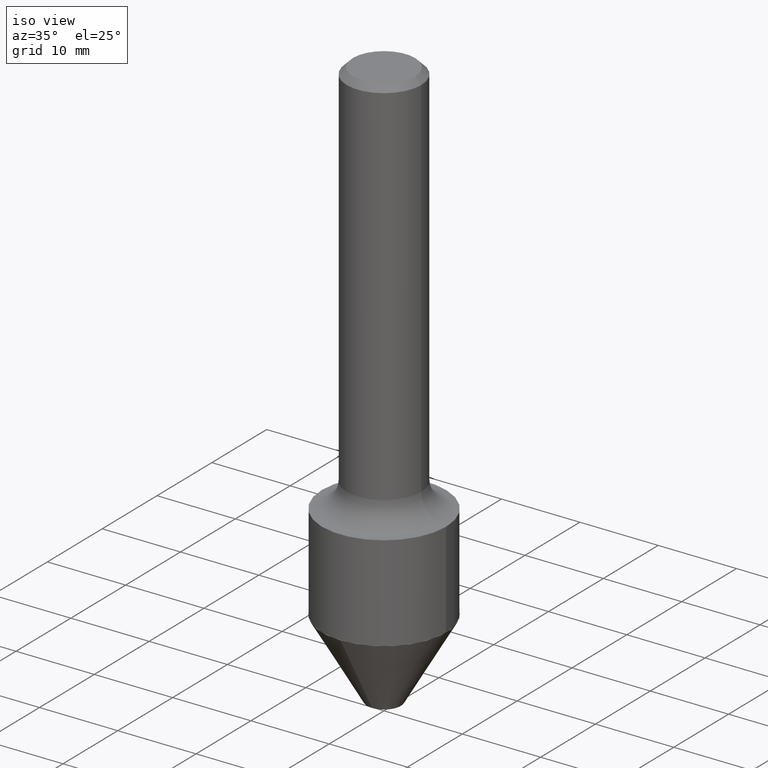
[diagram: clean part render]
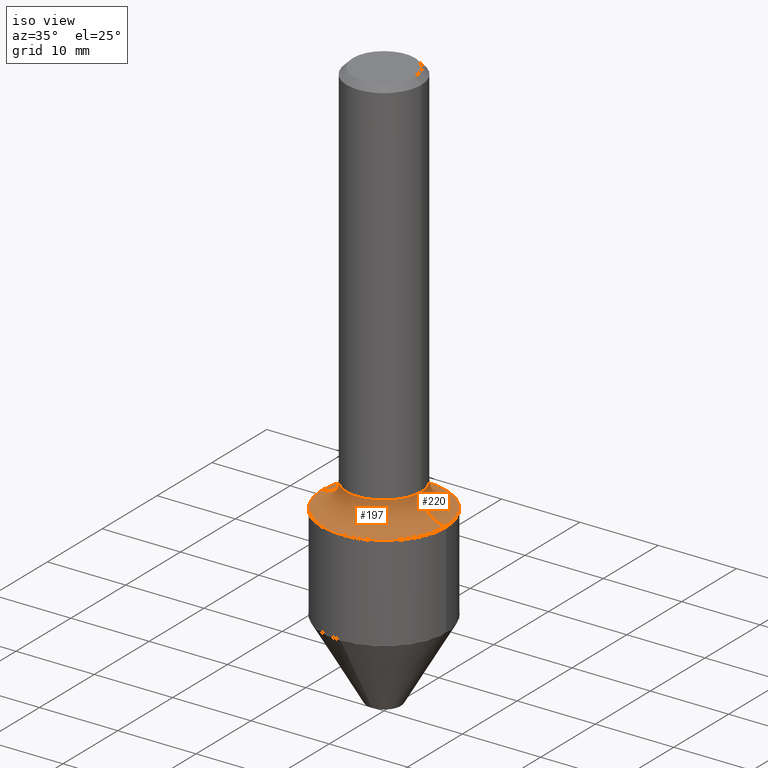
[diagram: same view with one multi-face feature highlighted, each face labeled with its STEP entity id]
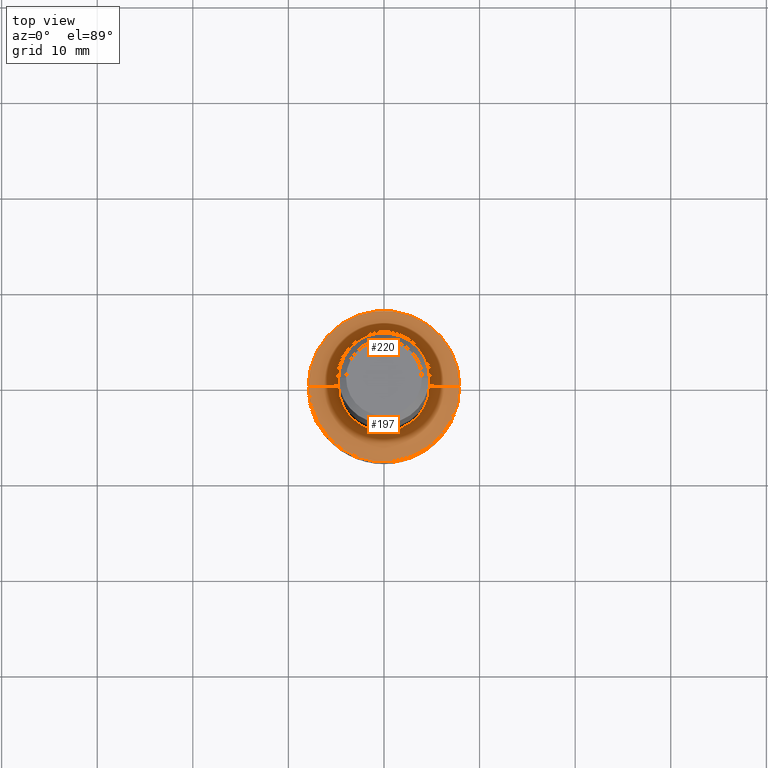
[diagram: same view with one multi-face feature highlighted, each face labeled with its STEP entity id]
A machine part, iso view. The highlighted faces form ONE feature: a constant-radius fillet chain: 2 tangent blend faces with common blend radius 3.175 mm. The faces share edges in the B-rep.
A second angle (top view) of the same feature is appended — it is thin or edge-on in the first view.
Their STEP definitions:
[1] entity #220 (Torus):
#22 = CIRCLE ( 'NONE', #275, 0.1249999999999996947 ) ;
#55 = EDGE_CURVE ( 'NONE', #303, #427, #282, .T. ) ;
#66 = VERTEX_POINT ( 'NONE', #76 ) ;
#76 = CARTESIAN_POINT ( 'NONE',  ( -0.3125000000000000000, -4.779974035130193909E-15, -2.004999999999999893 ) ) ;
#88 = CARTESIAN_POINT ( 'NONE',  ( 4.903164956401198966E-29, -7.000420084380507779E-15, -2.004999999999999893 ) ) ;
#102 = EDGE_CURVE ( 'NONE', #427, #66, #242, .T. ) ;
#115 = CIRCLE ( 'NONE', #130, 0.1875000000000002498 ) ;
#120 = AXIS2_PLACEMENT_3D ( 'NONE', #88, #256, #210 ) ;
#130 = AXIS2_PLACEMENT_3D ( 'NONE', #168, #508, #173 ) ;
#140 = CARTESIAN_POINT ( 'NONE',  ( -0.1875000000000002498, -5.005845661302559902E-15, -1.880000000000000338 ) ) ;
#168 = CARTESIAN_POINT ( 'NONE',  ( 4.597481355628058013E-29, -6.563984917025115320E-15, -1.880000000000000338 ) ) ;
#169 = EDGE_CURVE ( 'NONE', #303, #424, #115, .T. ) ;
#173 = DIRECTION ( 'NONE',  ( 1.000000000000000000, -6.982962677686269077E-15, 0.000000000000000000 ) ) ;
#210 = DIRECTION ( 'NONE',  ( 1.000000000000000000, -6.982962677686269077E-15, 0.000000000000000000 ) ) ;
#220 = ADVANCED_FACE ( 'NONE', ( #471 ), #279, .F. ) ;
#226 = CARTESIAN_POINT ( 'NONE',  ( 4.597481355628058013E-29, -6.563984917025115320E-15, -1.880000000000000338 ) ) ;
#234 = ORIENTED_EDGE ( 'NONE', *, *, #169, .F. ) ;
#242 = CIRCLE ( 'NONE', #120, 0.3125000000000000000 ) ;
#255 = ORIENTED_EDGE ( 'NONE', *, *, #386, .F. ) ;
#256 = DIRECTION ( 'NONE',  ( -2.445468806185136597E-29, 3.491481338843145583E-15, 1.000000000000000000 ) ) ;
#266 = DIRECTION ( 'NONE',  ( -2.445468806185136597E-29, 3.491481338843145583E-15, 1.000000000000000000 ) ) ;
#275 = AXIS2_PLACEMENT_3D ( 'NONE', #491, #464, #305 ) ;
#279 = TOROIDAL_SURFACE ( 'NONE', #504, 0.3125000000000000000, 0.1249999999999996947 ) ;
#282 = CIRCLE ( 'NONE', #484, 0.1249999999999996947 ) ;
#303 = VERTEX_POINT ( 'NONE', #416 ) ;
#305 = DIRECTION ( 'NONE',  ( -1.000000000000000000, 7.105427357601001859E-15, 0.000000000000000000 ) ) ;
#338 = ORIENTED_EDGE ( 'NONE', *, *, #55, .T. ) ;
#386 = EDGE_CURVE ( 'NONE', #424, #66, #22, .T. ) ;
#416 = CARTESIAN_POINT ( 'NONE',  ( 0.1875000000000002498, -7.873290419091291906E-15, -1.880000000000000338 ) ) ;
#421 = EDGE_LOOP ( 'NONE', ( #255, #234, #338, #442 ) ) ;
#424 = VERTEX_POINT ( 'NONE', #140 ) ;
#427 = VERTEX_POINT ( 'NONE', #439 ) ;
#439 = CARTESIAN_POINT ( 'NONE',  ( 0.3125000000000000000, -9.182595921157466915E-15, -2.004999999999999893 ) ) ;
#442 = ORIENTED_EDGE ( 'NONE', *, *, #102, .T. ) ;
#445 = DIRECTION ( 'NONE',  ( 1.000000000000000000, -6.982962677686265133E-15, 0.000000000000000000 ) ) ;
#449 = CARTESIAN_POINT ( 'NONE',  ( 0.3125000000000000000, -8.746160753802073667E-15, -1.880000000000000338 ) ) ;
#464 = DIRECTION ( 'NONE',  ( 7.105427357601001859E-15, 1.000000000000000000, -3.491481338843145583E-15 ) ) ;
#467 = DIRECTION ( 'NONE',  ( 1.000000000000000000, -6.982962677686265133E-15, 4.883557194083112340E-29 ) ) ;
#471 = FACE_OUTER_BOUND ( 'NONE', #421, .T. ) ;
#484 = AXIS2_PLACEMENT_3D ( 'NONE', #449, #488, #445 ) ;
#488 = DIRECTION ( 'NONE',  ( -6.982962677686266711E-15, -1.000000000000000000, 3.491481338843145583E-15 ) ) ;
#491 = CARTESIAN_POINT ( 'NONE',  ( -0.3125000000000000000, -4.343538867774801451E-15, -1.880000000000000338 ) ) ;
#504 = AXIS2_PLACEMENT_3D ( 'NONE', #226, #266, #467 ) ;
#508 = DIRECTION ( 'NONE',  ( -2.445468806185136597E-29, 3.491481338843145583E-15, 1.000000000000000000 ) ) ;
[2] entity #197 (Torus):
#14 = DIRECTION ( 'NONE',  ( 1.000000000000000000, -6.982962677686269077E-15, 0.000000000000000000 ) ) ;
#22 = CIRCLE ( 'NONE', #275, 0.1249999999999996947 ) ;
#24 = CARTESIAN_POINT ( 'NONE',  ( 4.597481355628058013E-29, -6.563984917025115320E-15, -1.880000000000000338 ) ) ;
#55 = EDGE_CURVE ( 'NONE', #303, #427, #282, .T. ) ;
#60 = AXIS2_PLACEMENT_3D ( 'NONE', #100, #440, #151 ) ;
#66 = VERTEX_POINT ( 'NONE', #76 ) ;
#67 = DIRECTION ( 'NONE',  ( -2.445468806185136597E-29, 3.491481338843145583E-15, 1.000000000000000000 ) ) ;
#76 = CARTESIAN_POINT ( 'NONE',  ( -0.3125000000000000000, -4.779974035130193909E-15, -2.004999999999999893 ) ) ;
#100 = CARTESIAN_POINT ( 'NONE',  ( 4.903164956401198966E-29, -7.000420084380507779E-15, -2.004999999999999893 ) ) ;
#108 = EDGE_LOOP ( 'NONE', ( #344, #183, #230, #509 ) ) ;
#114 = EDGE_CURVE ( 'NONE', #424, #303, #199, .T. ) ;
#139 = DIRECTION ( 'NONE',  ( 1.000000000000000000, -6.982962677686265133E-15, 4.883557194083112340E-29 ) ) ;
#140 = CARTESIAN_POINT ( 'NONE',  ( -0.1875000000000002498, -5.005845661302559902E-15, -1.880000000000000338 ) ) ;
#151 = DIRECTION ( 'NONE',  ( 1.000000000000000000, -6.982962677686269077E-15, 0.000000000000000000 ) ) ;
#183 = ORIENTED_EDGE ( 'NONE', *, *, #386, .T. ) ;
#197 = ADVANCED_FACE ( 'NONE', ( #263 ), #487, .F. ) ;
#199 = CIRCLE ( 'NONE', #420, 0.1875000000000002498 ) ;
#230 = ORIENTED_EDGE ( 'NONE', *, *, #331, .T. ) ;
#263 = FACE_OUTER_BOUND ( 'NONE', #108, .T. ) ;
#275 = AXIS2_PLACEMENT_3D ( 'NONE', #491, #464, #305 ) ;
#280 = AXIS2_PLACEMENT_3D ( 'NONE', #24, #67, #139 ) ;
#282 = CIRCLE ( 'NONE', #484, 0.1249999999999996947 ) ;
#303 = VERTEX_POINT ( 'NONE', #416 ) ;
#305 = DIRECTION ( 'NONE',  ( -1.000000000000000000, 7.105427357601001859E-15, 0.000000000000000000 ) ) ;
#331 = EDGE_CURVE ( 'NONE', #66, #427, #479, .T. ) ;
#344 = ORIENTED_EDGE ( 'NONE', *, *, #114, .F. ) ;
#386 = EDGE_CURVE ( 'NONE', #424, #66, #22, .T. ) ;
#409 = CARTESIAN_POINT ( 'NONE',  ( 4.597481355628058013E-29, -6.563984917025115320E-15, -1.880000000000000338 ) ) ;
#416 = CARTESIAN_POINT ( 'NONE',  ( 0.1875000000000002498, -7.873290419091291906E-15, -1.880000000000000338 ) ) ;
#420 = AXIS2_PLACEMENT_3D ( 'NONE', #409, #495, #14 ) ;
#424 = VERTEX_POINT ( 'NONE', #140 ) ;
#427 = VERTEX_POINT ( 'NONE', #439 ) ;
#439 = CARTESIAN_POINT ( 'NONE',  ( 0.3125000000000000000, -9.182595921157466915E-15, -2.004999999999999893 ) ) ;
#440 = DIRECTION ( 'NONE',  ( -2.445468806185136597E-29, 3.491481338843145583E-15, 1.000000000000000000 ) ) ;
#445 = DIRECTION ( 'NONE',  ( 1.000000000000000000, -6.982962677686265133E-15, 0.000000000000000000 ) ) ;
#449 = CARTESIAN_POINT ( 'NONE',  ( 0.3125000000000000000, -8.746160753802073667E-15, -1.880000000000000338 ) ) ;
#464 = DIRECTION ( 'NONE',  ( 7.105427357601001859E-15, 1.000000000000000000, -3.491481338843145583E-15 ) ) ;
#479 = CIRCLE ( 'NONE', #60, 0.3125000000000000000 ) ;
#484 = AXIS2_PLACEMENT_3D ( 'NONE', #449, #488, #445 ) ;
#487 = TOROIDAL_SURFACE ( 'NONE', #280, 0.3125000000000000000, 0.1249999999999996947 ) ;
#488 = DIRECTION ( 'NONE',  ( -6.982962677686266711E-15, -1.000000000000000000, 3.491481338843145583E-15 ) ) ;
#491 = CARTESIAN_POINT ( 'NONE',  ( -0.3125000000000000000, -4.343538867774801451E-15, -1.880000000000000338 ) ) ;
#495 = DIRECTION ( 'NONE',  ( -2.445468806185136597E-29, 3.491481338843145583E-15, 1.000000000000000000 ) ) ;
#509 = ORIENTED_EDGE ( 'NONE', *, *, #55, .F. ) ;